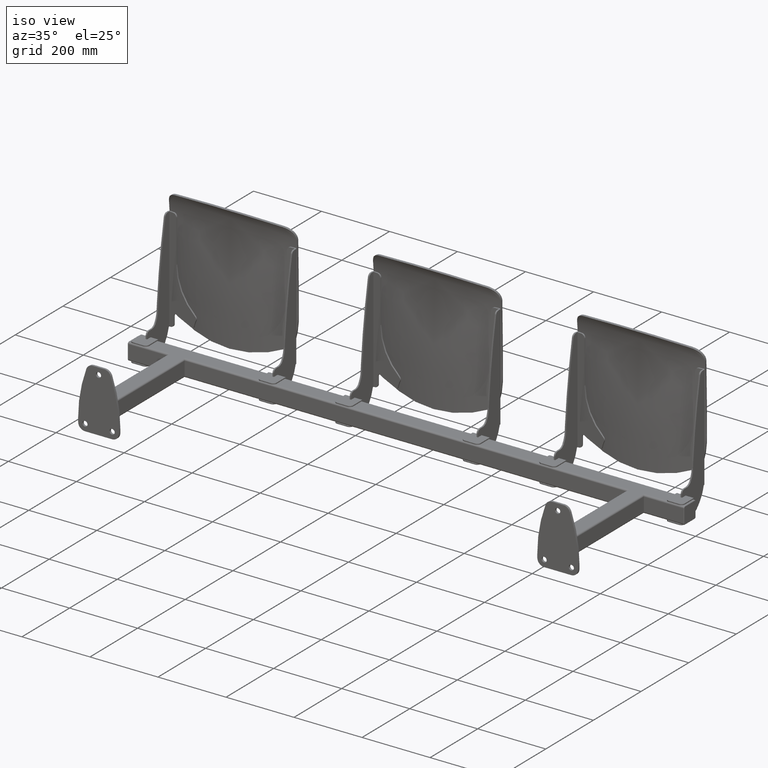
[diagram: clean part render]
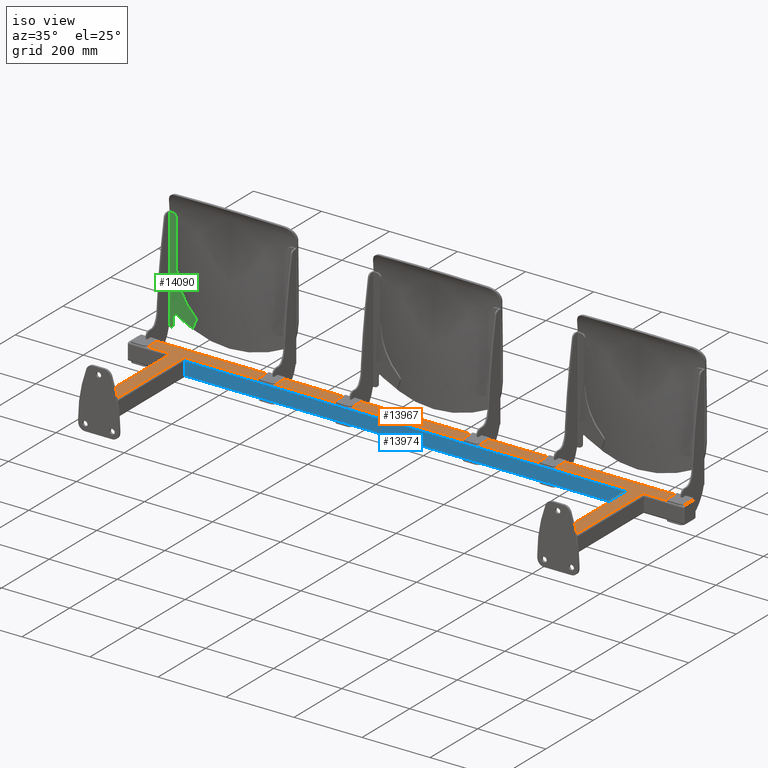
[diagram: same view with three faces highlighted in distinct colors, each labeled with its STEP entity id]
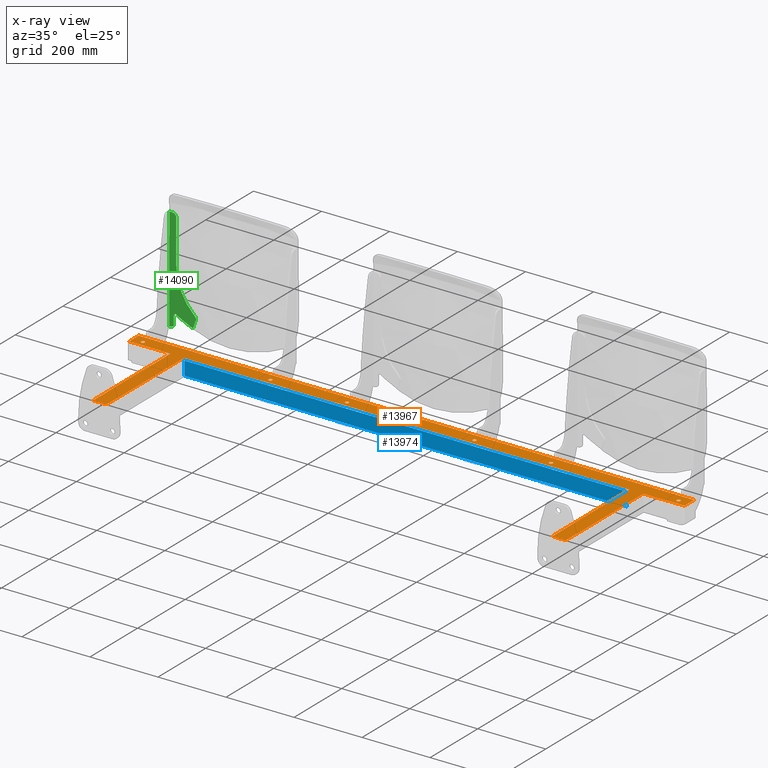
[diagram: x-ray of the same camera — body ghosted, the three highlighted faces saturated]
A machine part, iso view with three faces highlighted in distinct colors.
The next image is the same camera in x-ray (body ghosted, the three faces saturated) — at least one of them is partly hidden behind the body in this view.
Their STEP definitions:

[orange] entity #13967 — the highlighted planar face has unit normal (0, 0, -1).
#2306 = AXIS2_PLACEMENT_3D ( 'NONE', #6467, #6468, #6469 ) ;
#2307 = AXIS2_PLACEMENT_3D ( 'NONE', #6470, #6471, #6472 ) ;
#2308 = AXIS2_PLACEMENT_3D ( 'NONE', #6473, #6474, #6475 ) ;
#2343 = AXIS2_PLACEMENT_3D ( 'NONE', #6610, #6607, #6614 ) ;
#2407 = AXIS2_PLACEMENT_3D ( 'NONE', #9529, #9530, #9531 ) ;
#2408 = AXIS2_PLACEMENT_3D ( 'NONE', #9534, #9535, #9536 ) ;
#2416 = AXIS2_PLACEMENT_3D ( 'NONE', #9655, #9656, #9657 ) ;
#2418 = AXIS2_PLACEMENT_3D ( 'NONE', #9665, #9666, #9667 ) ;
#2420 = AXIS2_PLACEMENT_3D ( 'NONE', #9675, #9676, #9677 ) ;
#2442 = AXIS2_PLACEMENT_3D ( 'NONE', #5076, #5078, #5080 ) ;
#2444 = AXIS2_PLACEMENT_3D ( 'NONE', #5101, #5103, #5105 ) ;
#2446 = AXIS2_PLACEMENT_3D ( 'NONE', #5123, #5124, #5125 ) ;
#3447 = EDGE_CURVE ( 'NONE', #9018, #9026, #9084, .T. ) ;
#3921 = EDGE_LOOP ( 'NONE', ( #10330, #10334 ) ) ;
#3924 = EDGE_LOOP ( 'NONE', ( #10327, #10314 ) ) ;
#3925 = EDGE_LOOP ( 'NONE', ( #10335, #10341, #10320, #10326, #10324, #10325, #10329, #10338, #10315, #10319, #10387, #10361 ) ) ;
#3926 = EDGE_LOOP ( 'NONE', ( #10366, #10371 ) ) ;
#3927 = EDGE_LOOP ( 'NONE', ( #10364, #10365 ) ) ;
#3931 = EDGE_LOOP ( 'NONE', ( #10331, #10332 ) ) ;
#4088 = VERTEX_POINT ( 'NONE', #11244 ) ;
#4092 = VERTEX_POINT ( 'NONE', #11264 ) ;
#5076 = CARTESIAN_POINT ( 'NONE',  ( 187.5000000000000000, 347.0000000000000000, 25.00000000000000000 ) ) ;
#5078 = DIRECTION ( 'NONE',  ( 0.0000000000000000000, 0.0000000000000000000, 1.000000000000000000 ) ) ;
#5080 = DIRECTION ( 'NONE',  ( 1.000000000000000000, 0.0000000000000000000, 0.0000000000000000000 ) ) ;
#5101 = CARTESIAN_POINT ( 'NONE',  ( -187.5000000000000000, 347.0000000000000000, 25.00000000000000000 ) ) ;
#5103 = DIRECTION ( 'NONE',  ( 0.0000000000000000000, 0.0000000000000000000, 1.000000000000000000 ) ) ;
#5105 = DIRECTION ( 'NONE',  ( 1.000000000000000000, 0.0000000000000000000, 0.0000000000000000000 ) ) ;
#5123 = CARTESIAN_POINT ( 'NONE',  ( 412.5000000000000600, 347.0000000000000000, 25.00000000000000000 ) ) ;
#5124 = DIRECTION ( 'NONE',  ( 0.0000000000000000000, 0.0000000000000000000, 1.000000000000000000 ) ) ;
#5125 = DIRECTION ( 'NONE',  ( -1.000000000000000000, 0.0000000000000000000, 0.0000000000000000000 ) ) ;
#6069 = CARTESIAN_POINT ( 'NONE',  ( -187.5000000000000000, 347.0000000000000000, 25.00000000000000000 ) ) ;
#6070 = DIRECTION ( 'NONE',  ( 0.0000000000000000000, 0.0000000000000000000, 1.000000000000000000 ) ) ;
#6071 = DIRECTION ( 'NONE',  ( 1.000000000000000000, 0.0000000000000000000, 0.0000000000000000000 ) ) ;
#6156 = EDGE_LOOP ( 'NONE', ( #10383, #10381 ) ) ;
#6456 = DIRECTION ( 'NONE',  ( 3.469446951953614200E-016, -1.000000000000000000, 0.0000000000000000000 ) ) ;
#6457 = CARTESIAN_POINT ( 'NONE',  ( -655.0000000000000000, 2.272487753529617300E-013, 25.00000000000000000 ) ) ;
#6458 = DIRECTION ( 'NONE',  ( 3.469446951953614200E-016, 1.000000000000000000, 0.0000000000000000000 ) ) ;
#6459 = CARTESIAN_POINT ( 'NONE',  ( 0.0000000000000000000, 331.0000000000000000, 25.00000000000000000 ) ) ;
#6460 = DIRECTION ( 'NONE',  ( 1.000000000000000000, 0.0000000000000000000, 0.0000000000000000000 ) ) ;
#6461 = CARTESIAN_POINT ( 'NONE',  ( 655.0000000000000000, 2.272487753529617300E-013, 25.00000000000000000 ) ) ;
#6462 = DIRECTION ( 'NONE',  ( 3.469446951953614200E-016, -1.000000000000000000, 0.0000000000000000000 ) ) ;
#6463 = CARTESIAN_POINT ( 'NONE',  ( 650.0000000000000000, 6.000000000000000900, 25.00000000000000000 ) ) ;
#6464 = DIRECTION ( 'NONE',  ( 1.000000000000000000, 0.0000000000000000000, 0.0000000000000000000 ) ) ;
#6465 = CARTESIAN_POINT ( 'NONE',  ( 695.0000000000001100, -2.411265631607761900E-013, 25.00000000000000000 ) ) ;
#6466 = DIRECTION ( 'NONE',  ( 3.469446951953614200E-016, 1.000000000000000000, 0.0000000000000000000 ) ) ;
#6467 = CARTESIAN_POINT ( 'NONE',  ( -412.5000000000000600, 347.0000000000000000, 25.00000000000000000 ) ) ;
#6468 = DIRECTION ( 'NONE',  ( 0.0000000000000000000, 0.0000000000000000000, 1.000000000000000000 ) ) ;
#6469 = DIRECTION ( 'NONE',  ( 1.000000000000000000, 0.0000000000000000000, 0.0000000000000000000 ) ) ;
#6470 = CARTESIAN_POINT ( 'NONE',  ( 412.5000000000000600, 347.0000000000000000, 25.00000000000000000 ) ) ;
#6471 = DIRECTION ( 'NONE',  ( 0.0000000000000000000, 0.0000000000000000000, 1.000000000000000000 ) ) ;
#6472 = DIRECTION ( 'NONE',  ( -1.000000000000000000, 0.0000000000000000000, 0.0000000000000000000 ) ) ;
#6473 = CARTESIAN_POINT ( 'NONE',  ( 187.5000000000000000, 347.0000000000000000, 25.00000000000000000 ) ) ;
#6474 = DIRECTION ( 'NONE',  ( 0.0000000000000000000, 0.0000000000000000000, 1.000000000000000000 ) ) ;
#6475 = DIRECTION ( 'NONE',  ( 1.000000000000000000, 0.0000000000000000000, 0.0000000000000000000 ) ) ;
#6484 = CARTESIAN_POINT ( 'NONE',  ( -700.0000000000001100, 6.000000000000000900, 25.00000000000000000 ) ) ;
#6485 = DIRECTION ( 'NONE',  ( 1.000000000000000000, -1.734723475976805600E-017, 0.0000000000000000000 ) ) ;
#6607 = DIRECTION ( 'NONE',  ( 0.0000000000000000000, 0.0000000000000000000, -1.000000000000000000 ) ) ;
#6610 = CARTESIAN_POINT ( 'NONE',  ( 0.0000000000000000000, 0.0000000000000000000, 25.00000000000000000 ) ) ;
#6612 = PLANE ( 'NONE',  #2343 ) ;
#6614 = DIRECTION ( 'NONE',  ( -1.000000000000000000, 0.0000000000000000000, -0.0000000000000000000 ) ) ;
#8319 = CIRCLE ( 'NONE', #2407, 5.249999999999976900 ) ;
#8328 = CIRCLE ( 'NONE', #2408, 5.249999999999976900 ) ;
#8329 = LINE ( 'NONE', #9533, #8334 ) ;
#8330 = LINE ( 'NONE', #9532, #8337 ) ;
#8334 = VECTOR ( 'NONE', #9522, 1000.000000000000000 ) ;
#8336 = LINE ( 'NONE', #9538, #8341 ) ;
#8337 = VECTOR ( 'NONE', #9537, 1000.000000000000000 ) ;
#8339 = LINE ( 'NONE', #9540, #8345 ) ;
#8341 = VECTOR ( 'NONE', #9539, 1000.000000000000000 ) ;
#8343 = LINE ( 'NONE', #9542, #8349 ) ;
#8345 = VECTOR ( 'NONE', #9541, 1000.000000000000000 ) ;
#8349 = VECTOR ( 'NONE', #9543, 1000.000000000000000 ) ;
#8421 = CIRCLE ( 'NONE', #2416, 5.249999999999976900 ) ;
#8428 = CIRCLE ( 'NONE', #2418, 5.250000000000032000 ) ;
#8433 = CIRCLE ( 'NONE', #2420, 5.249999999999976900 ) ;
#8982 = VERTEX_POINT ( 'NONE', #9267 ) ;
#8986 = VERTEX_POINT ( 'NONE', #9269 ) ;
#8987 = VERTEX_POINT ( 'NONE', #9273 ) ;
#8997 = VERTEX_POINT ( 'NONE', #9281 ) ;
#9007 = VERTEX_POINT ( 'NONE', #9291 ) ;
#9009 = VERTEX_POINT ( 'NONE', #9293 ) ;
#9010 = VERTEX_POINT ( 'NONE', #9294 ) ;
#9013 = VERTEX_POINT ( 'NONE', #9297 ) ;
#9014 = VERTEX_POINT ( 'NONE', #9298 ) ;
#9015 = VERTEX_POINT ( 'NONE', #9299 ) ;
#9018 = VERTEX_POINT ( 'NONE', #9302 ) ;
#9022 = VERTEX_POINT ( 'NONE', #9306 ) ;
#9023 = VERTEX_POINT ( 'NONE', #9307 ) ;
#9026 = VERTEX_POINT ( 'NONE', #9310 ) ;
#9035 = VERTEX_POINT ( 'NONE', #9319 ) ;
#9038 = VERTEX_POINT ( 'NONE', #9322 ) ;
#9044 = VERTEX_POINT ( 'NONE', #9328 ) ;
#9045 = VERTEX_POINT ( 'NONE', #9329 ) ;
#9048 = VERTEX_POINT ( 'NONE', #9332 ) ;
#9051 = VERTEX_POINT ( 'NONE', #9335 ) ;
#9059 = VERTEX_POINT ( 'NONE', #9343 ) ;
#9062 = VERTEX_POINT ( 'NONE', #9346 ) ;
#9084 = CIRCLE ( 'NONE', #13749, 5.250000000000004400 ) ;
#9267 = CARTESIAN_POINT ( 'NONE',  ( 695.0000000000002300, 331.0000000000000000, 25.00000000000000000 ) ) ;
#9269 = CARTESIAN_POINT ( 'NONE',  ( -417.7500000000000600, 347.0000000000000000, 25.00000000000000000 ) ) ;
#9273 = CARTESIAN_POINT ( 'NONE',  ( 816.0000000000000000, 371.0000000000000000, 25.00000000000000000 ) ) ;
#9281 = CARTESIAN_POINT ( 'NONE',  ( -695.0000000000002300, 331.0000000000000000, 25.00000000000000000 ) ) ;
#9291 = CARTESIAN_POINT ( 'NONE',  ( -782.2500000000001100, 347.0000000000000000, 25.00000000000000000 ) ) ;
#9293 = CARTESIAN_POINT ( 'NONE',  ( -792.7500000000001100, 347.0000000000000000, 25.00000000000000000 ) ) ;
#9294 = CARTESIAN_POINT ( 'NONE',  ( 417.7500000000000600, 347.0000000000000000, 25.00000000000000000 ) ) ;
#9297 = CARTESIAN_POINT ( 'NONE',  ( -654.9999999999998900, 331.0000000000000000, 25.00000000000000000 ) ) ;
#9298 = CARTESIAN_POINT ( 'NONE',  ( -655.0000000000000000, 6.000000000000000000, 25.00000000000000000 ) ) ;
#9299 = CARTESIAN_POINT ( 'NONE',  ( -816.0000000000000000, 331.0000000000000000, 25.00000000000000000 ) ) ;
#9302 = CARTESIAN_POINT ( 'NONE',  ( -182.2500000000000000, 347.0000000000000000, 25.00000000000000000 ) ) ;
#9306 = CARTESIAN_POINT ( 'NONE',  ( 182.2500000000000000, 347.0000000000000000, 25.00000000000000000 ) ) ;
#9307 = CARTESIAN_POINT ( 'NONE',  ( 654.9999999999998900, 331.0000000000000000, 25.00000000000000000 ) ) ;
#9310 = CARTESIAN_POINT ( 'NONE',  ( -192.7500000000000000, 347.0000000000000000, 25.00000000000000000 ) ) ;
#9319 = CARTESIAN_POINT ( 'NONE',  ( -816.0000000000000000, 371.0000000000000000, 25.00000000000000000 ) ) ;
#9322 = CARTESIAN_POINT ( 'NONE',  ( 782.2500000000001100, 347.0000000000000000, 25.00000000000000000 ) ) ;
#9328 = CARTESIAN_POINT ( 'NONE',  ( 192.7500000000000000, 347.0000000000000000, 25.00000000000000000 ) ) ;
#9329 = CARTESIAN_POINT ( 'NONE',  ( 816.0000000000000000, 331.0000000000000000, 25.00000000000000000 ) ) ;
#9332 = CARTESIAN_POINT ( 'NONE',  ( -407.2500000000000000, 347.0000000000000000, 25.00000000000000000 ) ) ;
#9335 = CARTESIAN_POINT ( 'NONE',  ( -695.0000000000001100, 6.000000000000000900, 25.00000000000000000 ) ) ;
#9343 = CARTESIAN_POINT ( 'NONE',  ( 407.2500000000000000, 347.0000000000000000, 25.00000000000000000 ) ) ;
#9346 = CARTESIAN_POINT ( 'NONE',  ( 792.7500000000001100, 347.0000000000000000, 25.00000000000000000 ) ) ;
#9522 = DIRECTION ( 'NONE',  ( 1.000000000000000000, 0.0000000000000000000, 0.0000000000000000000 ) ) ;
#9529 = CARTESIAN_POINT ( 'NONE',  ( 787.5000000000001100, 347.0000000000000000, 25.00000000000000000 ) ) ;
#9530 = DIRECTION ( 'NONE',  ( 0.0000000000000000000, 0.0000000000000000000, 1.000000000000000000 ) ) ;
#9531 = DIRECTION ( 'NONE',  ( -1.000000000000000000, 0.0000000000000000000, 0.0000000000000000000 ) ) ;
#9532 = CARTESIAN_POINT ( 'NONE',  ( 816.0000000000000000, 0.0000000000000000000, 25.00000000000000000 ) ) ;
#9533 = CARTESIAN_POINT ( 'NONE',  ( 0.0000000000000000000, 331.0000000000000000, 25.00000000000000000 ) ) ;
#9534 = CARTESIAN_POINT ( 'NONE',  ( -787.5000000000001100, 347.0000000000000000, 25.00000000000000000 ) ) ;
#9535 = DIRECTION ( 'NONE',  ( 0.0000000000000000000, 0.0000000000000000000, 1.000000000000000000 ) ) ;
#9536 = DIRECTION ( 'NONE',  ( 1.000000000000000000, 0.0000000000000000000, 0.0000000000000000000 ) ) ;
#9537 = DIRECTION ( 'NONE',  ( 0.0000000000000000000, 1.000000000000000000, 0.0000000000000000000 ) ) ;
#9538 = CARTESIAN_POINT ( 'NONE',  ( 0.0000000000000000000, 371.0000000000000000, 25.00000000000000000 ) ) ;
#9539 = DIRECTION ( 'NONE',  ( -1.000000000000000000, 0.0000000000000000000, 0.0000000000000000000 ) ) ;
#9540 = CARTESIAN_POINT ( 'NONE',  ( -816.0000000000000000, 0.0000000000000000000, 25.00000000000000000 ) ) ;
#9541 = DIRECTION ( 'NONE',  ( 0.0000000000000000000, -1.000000000000000000, 0.0000000000000000000 ) ) ;
#9542 = CARTESIAN_POINT ( 'NONE',  ( 0.0000000000000000000, 331.0000000000000000, 25.00000000000000000 ) ) ;
#9543 = DIRECTION ( 'NONE',  ( 1.000000000000000000, 0.0000000000000000000, 0.0000000000000000000 ) ) ;
#9655 = CARTESIAN_POINT ( 'NONE',  ( 787.5000000000001100, 347.0000000000000000, 25.00000000000000000 ) ) ;
#9656 = DIRECTION ( 'NONE',  ( 0.0000000000000000000, 0.0000000000000000000, 1.000000000000000000 ) ) ;
#9657 = DIRECTION ( 'NONE',  ( -1.000000000000000000, 0.0000000000000000000, 0.0000000000000000000 ) ) ;
#9665 = CARTESIAN_POINT ( 'NONE',  ( -412.5000000000000600, 347.0000000000000000, 25.00000000000000000 ) ) ;
#9666 = DIRECTION ( 'NONE',  ( 0.0000000000000000000, 0.0000000000000000000, 1.000000000000000000 ) ) ;
#9667 = DIRECTION ( 'NONE',  ( 1.000000000000000000, 0.0000000000000000000, 0.0000000000000000000 ) ) ;
#9675 = CARTESIAN_POINT ( 'NONE',  ( -787.5000000000001100, 347.0000000000000000, 25.00000000000000000 ) ) ;
#9676 = DIRECTION ( 'NONE',  ( 0.0000000000000000000, 0.0000000000000000000, 1.000000000000000000 ) ) ;
#9677 = DIRECTION ( 'NONE',  ( 1.000000000000000000, 0.0000000000000000000, 0.0000000000000000000 ) ) ;
#9684 = CARTESIAN_POINT ( 'NONE',  ( -695.0000000000001100, -2.411265631607761900E-013, 25.00000000000000000 ) ) ;
#10314 = ORIENTED_EDGE ( 'NONE', *, *, #11188, .F. ) ;
#10315 = ORIENTED_EDGE ( 'NONE', *, *, #13726, .T. ) ;
#10319 = ORIENTED_EDGE ( 'NONE', *, *, #13727, .T. ) ;
#10320 = ORIENTED_EDGE ( 'NONE', *, *, #11192, .T. ) ;
#10324 = ORIENTED_EDGE ( 'NONE', *, *, #11194, .T. ) ;
#10325 = ORIENTED_EDGE ( 'NONE', *, *, #13724, .T. ) ;
#10326 = ORIENTED_EDGE ( 'NONE', *, *, #11193, .T. ) ;
#10327 = ORIENTED_EDGE ( 'NONE', *, *, #13597, .F. ) ;
#10329 = ORIENTED_EDGE ( 'NONE', *, *, #13739, .T. ) ;
#10330 = ORIENTED_EDGE ( 'NONE', *, *, #13697, .F. ) ;
#10331 = ORIENTED_EDGE ( 'NONE', *, *, #13605, .F. ) ;
#10332 = ORIENTED_EDGE ( 'NONE', *, *, #11189, .F. ) ;
#10334 = ORIENTED_EDGE ( 'NONE', *, *, #3447, .F. ) ;
#10335 = ORIENTED_EDGE ( 'NONE', *, *, #11190, .T. ) ;
#10338 = ORIENTED_EDGE ( 'NONE', *, *, #13725, .T. ) ;
#10341 = ORIENTED_EDGE ( 'NONE', *, *, #11191, .T. ) ;
#10361 = ORIENTED_EDGE ( 'NONE', *, *, #13729, .T. ) ;
#10364 = ORIENTED_EDGE ( 'NONE', *, *, #13701, .F. ) ;
#10365 = ORIENTED_EDGE ( 'NONE', *, *, #13731, .F. ) ;
#10366 = ORIENTED_EDGE ( 'NONE', *, *, #13601, .F. ) ;
#10371 = ORIENTED_EDGE ( 'NONE', *, *, #13730, .F. ) ;
#10381 = ORIENTED_EDGE ( 'NONE', *, *, #13732, .F. ) ;
#10383 = ORIENTED_EDGE ( 'NONE', *, *, #13693, .F. ) ;
#10387 = ORIENTED_EDGE ( 'NONE', *, *, #13728, .T. ) ;
#11188 = EDGE_CURVE ( 'NONE', #9062, #9038, #8319, .T. ) ;
#11189 = EDGE_CURVE ( 'NONE', #9007, #9009, #8328, .T. ) ;
#11190 = EDGE_CURVE ( 'NONE', #8982, #9045, #8329, .T. ) ;
#11191 = EDGE_CURVE ( 'NONE', #9045, #8987, #8330, .T. ) ;
#11192 = EDGE_CURVE ( 'NONE', #8987, #9035, #8336, .T. ) ;
#11193 = EDGE_CURVE ( 'NONE', #9035, #9015, #8339, .T. ) ;
#11194 = EDGE_CURVE ( 'NONE', #9015, #8997, #8343, .T. ) ;
#11244 = CARTESIAN_POINT ( 'NONE',  ( 655.0000000000000000, 6.000000000000000900, 25.00000000000000000 ) ) ;
#11264 = CARTESIAN_POINT ( 'NONE',  ( 695.0000000000001100, 6.000000000000000900, 25.00000000000000000 ) ) ;
#13597 = EDGE_CURVE ( 'NONE', #9038, #9062, #8421, .T. ) ;
#13601 = EDGE_CURVE ( 'NONE', #8986, #9048, #8428, .T. ) ;
#13605 = EDGE_CURVE ( 'NONE', #9009, #9007, #8433, .T. ) ;
#13693 = EDGE_CURVE ( 'NONE', #9022, #9044, #14817, .T. ) ;
#13697 = EDGE_CURVE ( 'NONE', #9026, #9018, #14819, .T. ) ;
#13701 = EDGE_CURVE ( 'NONE', #9059, #9010, #14829, .T. ) ;
#13724 = EDGE_CURVE ( 'NONE', #8997, #9051, #14858, .T. ) ;
#13725 = EDGE_CURVE ( 'NONE', #9014, #9013, #14860, .T. ) ;
#13726 = EDGE_CURVE ( 'NONE', #9013, #9023, #14862, .T. ) ;
#13727 = EDGE_CURVE ( 'NONE', #9023, #4088, #14864, .T. ) ;
#13728 = EDGE_CURVE ( 'NONE', #4088, #4092, #14866, .T. ) ;
#13729 = EDGE_CURVE ( 'NONE', #4092, #8982, #14868, .T. ) ;
#13730 = EDGE_CURVE ( 'NONE', #9048, #8986, #14870, .T. ) ;
#13731 = EDGE_CURVE ( 'NONE', #9010, #9059, #14872, .T. ) ;
#13732 = EDGE_CURVE ( 'NONE', #9044, #9022, #14873, .T. ) ;
#13739 = EDGE_CURVE ( 'NONE', #9051, #9014, #14882, .T. ) ;
#13749 = AXIS2_PLACEMENT_3D ( 'NONE', #6069, #6070, #6071 ) ;
#13967 = ADVANCED_FACE ( 'NONE', ( #14940, #14942, #14939, #14941, #14938, #14943, #14944 ), #6612, .F. ) ;
#14817 = CIRCLE ( 'NONE', #2442, 5.250000000000004400 ) ;
#14819 = CIRCLE ( 'NONE', #2444, 5.250000000000004400 ) ;
#14829 = CIRCLE ( 'NONE', #2446, 5.250000000000032000 ) ;
#14858 = LINE ( 'NONE', #9684, #14861 ) ;
#14860 = LINE ( 'NONE', #6457, #14863 ) ;
#14861 = VECTOR ( 'NONE', #6456, 1000.000000000000000 ) ;
#14862 = LINE ( 'NONE', #6459, #14865 ) ;
#14863 = VECTOR ( 'NONE', #6458, 1000.000000000000000 ) ;
#14864 = LINE ( 'NONE', #6461, #14867 ) ;
#14865 = VECTOR ( 'NONE', #6460, 1000.000000000000000 ) ;
#14866 = LINE ( 'NONE', #6463, #14869 ) ;
#14867 = VECTOR ( 'NONE', #6462, 1000.000000000000000 ) ;
#14868 = LINE ( 'NONE', #6465, #14871 ) ;
#14869 = VECTOR ( 'NONE', #6464, 1000.000000000000000 ) ;
#14870 = CIRCLE ( 'NONE', #2306, 5.250000000000032000 ) ;
#14871 = VECTOR ( 'NONE', #6466, 1000.000000000000000 ) ;
#14872 = CIRCLE ( 'NONE', #2307, 5.250000000000032000 ) ;
#14873 = CIRCLE ( 'NONE', #2308, 5.250000000000004400 ) ;
#14882 = LINE ( 'NONE', #6484, #14884 ) ;
#14884 = VECTOR ( 'NONE', #6485, 1000.000000000000000 ) ;
#14938 = FACE_BOUND ( 'NONE', #3926, .T. ) ;
#14939 = FACE_BOUND ( 'NONE', #3931, .T. ) ;
#14940 = FACE_BOUND ( 'NONE', #3921, .T. ) ;
#14941 = FACE_OUTER_BOUND ( 'NONE', #3925, .T. ) ;
#14942 = FACE_BOUND ( 'NONE', #3924, .T. ) ;
#14943 = FACE_BOUND ( 'NONE', #3927, .T. ) ;
#14944 = FACE_BOUND ( 'NONE', #6156, .T. ) ;

[blue] entity #13974 — the highlighted planar face has unit normal (0, 1, 0).
#3689 = EDGE_CURVE ( 'NONE', #12339, #12334, #5865, .T. ) ;
#3691 = EDGE_CURVE ( 'NONE', #12296, #12334, #5861, .T. ) ;
#3693 = EDGE_CURVE ( 'NONE', #12296, #7736, #5866, .T. ) ;
#4941 = CARTESIAN_POINT ( 'NONE',  ( -649.9999999999998900, 326.0000000000000000, 25.00000000000000000 ) ) ;
#4944 = DIRECTION ( 'NONE',  ( -0.0000000000000000000, -0.0000000000000000000, -1.000000000000000000 ) ) ;
#5734 = CARTESIAN_POINT ( 'NONE',  ( -649.9999999999998900, 326.0000000000000000, 20.00000000000000000 ) ) ;
#5861 = LINE ( 'NONE', #11238, #5869 ) ;
#5865 = LINE ( 'NONE', #11232, #5867 ) ;
#5866 = LINE ( 'NONE', #11237, #5871 ) ;
#5867 = VECTOR ( 'NONE', #11233, 1000.000000000000000 ) ;
#5869 = VECTOR ( 'NONE', #11243, 1000.000000000000000 ) ;
#5871 = VECTOR ( 'NONE', #11245, 1000.000000000000000 ) ;
#6109 = ORIENTED_EDGE ( 'NONE', *, *, #3693, .T. ) ;
#6116 = ORIENTED_EDGE ( 'NONE', *, *, #3691, .F. ) ;
#6123 = ORIENTED_EDGE ( 'NONE', *, *, #3689, .T. ) ;
#6124 = ORIENTED_EDGE ( 'NONE', *, *, #13671, .T. ) ;
#6158 = EDGE_LOOP ( 'NONE', ( #6124, #6123, #6116, #6109 ) ) ;
#6631 = PLANE ( 'NONE',  #9746 ) ;
#6632 = CARTESIAN_POINT ( 'NONE',  ( -649.9999999999998900, 326.0000000000000000, 25.00000000000000000 ) ) ;
#6637 = DIRECTION ( 'NONE',  ( 0.0000000000000000000, 1.000000000000000000, 0.0000000000000000000 ) ) ;
#6638 = DIRECTION ( 'NONE',  ( 0.0000000000000000000, -0.0000000000000000000, 1.000000000000000000 ) ) ;
#7736 = VERTEX_POINT ( 'NONE', #5734 ) ;
#8498 = LINE ( 'NONE', #4941, #8501 ) ;
#8501 = VECTOR ( 'NONE', #4944, 1000.000000000000000 ) ;
#9588 = CARTESIAN_POINT ( 'NONE',  ( 649.9999999999998900, 326.0000000000000000, 20.00000000000000000 ) ) ;
#9595 = CARTESIAN_POINT ( 'NONE',  ( 649.9999999999998900, 326.0000000000000000, -19.99999999999999600 ) ) ;
#9597 = CARTESIAN_POINT ( 'NONE',  ( -649.9999999999998900, 326.0000000000000000, -19.99999999999999600 ) ) ;
#9746 = AXIS2_PLACEMENT_3D ( 'NONE', #6632, #6637, #6638 ) ;
#11232 = CARTESIAN_POINT ( 'NONE',  ( 649.9999999999998900, 326.0000000000000000, -19.99999999999999600 ) ) ;
#11233 = DIRECTION ( 'NONE',  ( 1.000000000000000000, 0.0000000000000000000, 0.0000000000000000000 ) ) ;
#11237 = CARTESIAN_POINT ( 'NONE',  ( -649.9999999999998900, 326.0000000000000000, 20.00000000000000000 ) ) ;
#11238 = CARTESIAN_POINT ( 'NONE',  ( 649.9999999999998900, 326.0000000000000000, 25.00000000000000000 ) ) ;
#11243 = DIRECTION ( 'NONE',  ( -0.0000000000000000000, -0.0000000000000000000, -1.000000000000000000 ) ) ;
#11245 = DIRECTION ( 'NONE',  ( -1.000000000000000000, -0.0000000000000000000, -0.0000000000000000000 ) ) ;
#12296 = VERTEX_POINT ( 'NONE', #9588 ) ;
#12334 = VERTEX_POINT ( 'NONE', #9595 ) ;
#12339 = VERTEX_POINT ( 'NONE', #9597 ) ;
#13671 = EDGE_CURVE ( 'NONE', #7736, #12339, #8498, .T. ) ;
#13974 = ADVANCED_FACE ( 'NONE', ( #14957 ), #6631, .F. ) ;
#14957 = FACE_OUTER_BOUND ( 'NONE', #6158, .T. ) ;

[green] entity #14090 — the highlighted planar face has unit normal (-0.0958, -0.9954, 0).
#3409 = PLANE ( 'NONE',  #7153 ) ;
#3410 = CARTESIAN_POINT ( 'NONE',  ( -188.5000000000000000, 17.99999999999996100, 24.00000000000002100 ) ) ;
#3415 = DIRECTION ( 'NONE',  ( -0.09584575252022049800, -0.9953961983671791900, 0.0000000000000000000 ) ) ;
#3416 = DIRECTION ( 'NONE',  ( 0.9953961983671790700, -0.09584575252022048400, 0.0000000000000000000 ) ) ;
#3967 = CARTESIAN_POINT ( 'NONE',  ( -184.5000000000000000, 17.61484380720990100, 42.09000911109884400 ) ) ;
#3968 = DIRECTION ( 'NONE',  ( 0.0000000000000000000, 0.0000000000000000000, 1.000000000000000000 ) ) ;
#3975 = CARTESIAN_POINT ( 'NONE',  ( -162.6196988424526400, 15.50801043447419600, 24.00000000000009600 ) ) ;
#3976 = DIRECTION ( 'NONE',  ( 0.9953961983671790700, -0.09584575252022037300, 0.0000000000000000000 ) ) ;
#3977 = DIRECTION ( 'NONE',  ( 2.750060156608368600E-015, -2.648006749657840600E-016, -1.000000000000000000 ) ) ;
#3978 = CARTESIAN_POINT ( 'NONE',  ( -182.9675193682065500, 17.46728270579328400, 24.39113088401540400 ) ) ;
#3979 = DIRECTION ( 'NONE',  ( 2.176688216276588300E-013, -2.095912365680630600E-014, -1.000000000000000000 ) ) ;
#3980 = CARTESIAN_POINT ( 'NONE',  ( -184.4999999999999400, 17.61484380720984400, 330.0000000000000000 ) ) ;
#3981 = CARTESIAN_POINT ( 'NONE',  ( -172.5736608261252300, 16.46646795967643600, 320.0000000000000000 ) ) ;
#3982 = DIRECTION ( 'NONE',  ( -0.09584575252022049800, -0.9953961983671791900, -0.0000000000000000000 ) ) ;
#3983 = DIRECTION ( 'NONE',  ( 0.9953961983671790700, -0.09584575252022054000, 0.0000000000000000000 ) ) ;
#3984 = CARTESIAN_POINT ( 'NONE',  ( -181.4249707208374500, 17.31875216473971300, 24.49681722962390400 ) ) ;
#3985 = CARTESIAN_POINT ( 'NONE',  ( -179.8724822042540600, 17.16926452314032800, 24.60114541509068100 ) ) ;
#3986 = CARTESIAN_POINT ( 'NONE',  ( -184.5000000000000000, 17.61484380720990100, 24.28409515809885400 ) ) ;
#3987 = CARTESIAN_POINT ( 'NONE',  ( -170.5828684293788300, 16.27477645463487500, 24.00000000000395800 ) ) ;
#3989 = CARTESIAN_POINT ( 'NONE',  ( -180.5368304130530200, 17.23323397983728000, 34.57884802471357200 ) ) ;
#3990 = DIRECTION ( 'NONE',  ( -0.09584575252022049800, -0.9953961983671791900, -0.0000000000000000000 ) ) ;
#3991 = DIRECTION ( 'NONE',  ( 0.9953961983671793000, -0.09584575252022038700, 0.0000000000000000000 ) ) ;
#3992 = CARTESIAN_POINT ( 'NONE',  ( -120.2635138761707900, 11.42957369879214200, 44.07372596261147600 ) ) ;
#3993 = CARTESIAN_POINT ( 'NONE',  ( -156.8707370378486100, 14.95444837418485800, 58.88155333963863600 ) ) ;
#3994 = CARTESIAN_POINT ( 'NONE',  ( -158.3153326412890500, 15.09354710987048700, 59.62261421516016900 ) ) ;
#3995 = CARTESIAN_POINT ( 'NONE',  ( -164.6104912391828300, 15.69970193951419900, 56.59145301664560200 ) ) ;
#3996 = DIRECTION ( 'NONE',  ( 0.09584575252022049800, 0.9953961983671791900, 0.0000000000000000000 ) ) ;
#3997 = DIRECTION ( 'NONE',  ( 0.9953961983671791900, -0.09584575252022037300, 0.0000000000000000000 ) ) ;
#3998 = CARTESIAN_POINT ( 'NONE',  ( -156.1380335318006900, 14.88389705097653600, 58.54220238807209900 ) ) ;
#3999 = CARTESIAN_POINT ( 'NONE',  ( -159.9432653440214800, 15.25029920034622500, 60.63089457596555600 ) ) ;
#4000 = CARTESIAN_POINT ( 'NONE',  ( -160.8630157402462000, 15.33886109057801200, 61.27424498524445800 ) ) ;
#4001 = CARTESIAN_POINT ( 'NONE',  ( -161.1214335537769400, 15.36374389588018900, 61.46111508508809600 ) ) ;
#4002 = CARTESIAN_POINT ( 'NONE',  ( -115.0096950149533100, 10.92368848124325400, 42.35488176124789600 ) ) ;
#4003 = CARTESIAN_POINT ( 'NONE',  ( -129.8152838245827400, 12.34930453572655700, 47.43398999284612200 ) ) ;
#4004 = CARTESIAN_POINT ( 'NONE',  ( -143.5008606733279400, 13.66707570452646600, 52.87726956516083000 ) ) ;
#4005 = CARTESIAN_POINT ( 'NONE',  ( -151.9526490212497000, 14.48089036011485000, 56.60374593299583500 ) ) ;
#4006 = CARTESIAN_POINT ( 'NONE',  ( -156.1380335318006900, 14.88389705097653600, 58.54220238807209900 ) ) ;
#4008 = CARTESIAN_POINT ( 'NONE',  ( -113.1603538091479600, 10.74561717674377100, 48.05998716912812800 ) ) ;
#4009 = DIRECTION ( 'NONE',  ( -0.09584575252022049800, -0.9953961983671791900, -0.0000000000000000000 ) ) ;
#4010 = DIRECTION ( 'NONE',  ( 0.9953961983671791900, -0.09584575252022037300, 0.0000000000000000000 ) ) ;
#4011 = CARTESIAN_POINT ( 'NONE',  ( -33.57478584118886300, 3.082398586848778000, 29.84122683389196200 ) ) ;
#4012 = DIRECTION ( 'NONE',  ( -0.09584575252022049800, -0.9953961983671791900, -0.0000000000000000000 ) ) ;
#4013 = DIRECTION ( 'NONE',  ( 0.9953961983671791900, -0.09584575252022049800, 0.0000000000000000000 ) ) ;
#4016 = CARTESIAN_POINT ( 'NONE',  ( -109.0102407228748000, 10.34600673775437600, 68.00000000000000000 ) ) ;
#4017 = DIRECTION ( 'NONE',  ( 0.09584575252022049800, 0.9953961983671791900, 0.0000000000000000000 ) ) ;
#4018 = DIRECTION ( 'NONE',  ( 0.9953961983671790700, -0.09584575252022055300, -3.137667280584005200E-015 ) ) ;
#4182 = CARTESIAN_POINT ( 'NONE',  ( -13.31026908737649200, 1.131147556441169900, 194.4461557886543800 ) ) ;
#4183 = DIRECTION ( 'NONE',  ( -0.09584575252022049800, -0.9953961983671791900, -0.0000000000000000000 ) ) ;
#4184 = DIRECTION ( 'NONE',  ( 0.9953961983671791900, -0.09584575252022049800, 0.0000000000000000000 ) ) ;
#4400 = EDGE_CURVE ( 'NONE', #5578, #5599, #5881, .T. ) ;
#4404 = EDGE_CURVE ( 'NONE', #5604, #5593, #5882, .T. ) ;
#4405 = EDGE_CURVE ( 'NONE', #5604, #5580, #5884, .T. ) ;
#4406 = EDGE_CURVE ( 'NONE', #5599, #5580, #5885, .T. ) ;
#4407 = EDGE_CURVE ( 'NONE', #5598, #5578, #13873, .T. ) ;
#4408 = EDGE_CURVE ( 'NONE', #5598, #5619, #5889, .T. ) ;
#4409 = EDGE_CURVE ( 'NONE', #5547, #5619, #5893, .T. ) ;
#4410 = EDGE_CURVE ( 'NONE', #5547, #5615, #5890, .T. ) ;
#4411 = EDGE_CURVE ( 'NONE', #5555, #5615, #13872, .T. ) ;
#4412 = EDGE_CURVE ( 'NONE', #5565, #5555, #13895, .T. ) ;
#4413 = EDGE_CURVE ( 'NONE', #5565, #5566, #5897, .T. ) ;
#4414 = EDGE_CURVE ( 'NONE', #5605, #5566, #5892, .T. ) ;
#4415 = EDGE_CURVE ( 'NONE', #5541, #5605, #5895, .T. ) ;
#4966 = CARTESIAN_POINT ( 'NONE',  ( -103.6808314258597100, 9.832842989089707300, 75.04162505709574300 ) ) ;
#4979 = CARTESIAN_POINT ( 'NONE',  ( -170.5828684293859400, 16.27477645463554300, 56.59145301664429400 ) ) ;
#4993 = CARTESIAN_POINT ( 'NONE',  ( -156.1380335318006900, 14.88389705097653600, 58.54220238807209900 ) ) ;
#5010 = CARTESIAN_POINT ( 'NONE',  ( -115.0096950149533100, 10.92368848124325400, 42.35488176124789600 ) ) ;
#5012 = CARTESIAN_POINT ( 'NONE',  ( -107.3372407343402300, 10.18491516122393900, 46.72695777418037000 ) ) ;
#5031 = CARTESIAN_POINT ( 'NONE',  ( -184.5000000000000000, 17.61484380720990100, 24.28409515809885400 ) ) ;
#5034 = CARTESIAN_POINT ( 'NONE',  ( -172.5736608261252300, 16.46646795967643600, 330.0000000000000000 ) ) ;
#5056 = CARTESIAN_POINT ( 'NONE',  ( -162.6196988424533700, 15.50801043447425100, 194.4461557886543800 ) ) ;
#5063 = CARTESIAN_POINT ( 'NONE',  ( -179.8724822042540600, 17.16926452314032800, 24.60114541509068100 ) ) ;
#5065 = CARTESIAN_POINT ( 'NONE',  ( -184.4999999999999400, 17.61484380720984400, 330.0000000000000000 ) ) ;
#5073 = CARTESIAN_POINT ( 'NONE',  ( -162.6196988424534600, 15.50801043447425100, 320.0000000000000000 ) ) ;
#5075 = CARTESIAN_POINT ( 'NONE',  ( -101.1457261246025200, 9.588740112551120000, 64.02176152993708100 ) ) ;
#5090 = CARTESIAN_POINT ( 'NONE',  ( -161.1214335537769400, 15.36374389588018900, 61.46111508508809600 ) ) ;
#5097 = CARTESIAN_POINT ( 'NONE',  ( -170.5828684293811400, 16.27477645463509900, 34.57884802471576100 ) ) ;
#5294 = CIRCLE ( 'NONE', #15224, 150.0000000000000300 ) ;
#5534 = EDGE_LOOP ( 'NONE', ( #7104, #7105, #7106, #7107, #7108, #7109, #7110, #7111, #7112, #7113, #7114, #7115, #7116, #7117 ) ) ;
#5541 = VERTEX_POINT ( 'NONE', #4966 ) ;
#5547 = VERTEX_POINT ( 'NONE', #4979 ) ;
#5555 = VERTEX_POINT ( 'NONE', #4993 ) ;
#5565 = VERTEX_POINT ( 'NONE', #5010 ) ;
#5566 = VERTEX_POINT ( 'NONE', #5012 ) ;
#5578 = VERTEX_POINT ( 'NONE', #5031 ) ;
#5580 = VERTEX_POINT ( 'NONE', #5034 ) ;
#5593 = VERTEX_POINT ( 'NONE', #5056 ) ;
#5598 = VERTEX_POINT ( 'NONE', #5063 ) ;
#5599 = VERTEX_POINT ( 'NONE', #5065 ) ;
#5604 = VERTEX_POINT ( 'NONE', #5073 ) ;
#5605 = VERTEX_POINT ( 'NONE', #5075 ) ;
#5615 = VERTEX_POINT ( 'NONE', #5090 ) ;
#5619 = VERTEX_POINT ( 'NONE', #5097 ) ;
#5878 = VECTOR ( 'NONE', #3968, 1000.000000000000000 ) ;
#5881 = LINE ( 'NONE', #3967, #5878 ) ;
#5882 = LINE ( 'NONE', #3975, #5888 ) ;
#5884 = CIRCLE ( 'NONE', #13783, 10.00000000000000400 ) ;
#5885 = LINE ( 'NONE', #3980, #5891 ) ;
#5888 = VECTOR ( 'NONE', #3977, 1000.000000000000000 ) ;
#5889 = CIRCLE ( 'NONE', #13784, 10.00000000000000200 ) ;
#5890 = CIRCLE ( 'NONE', #13785, 6.000000000000000900 ) ;
#5891 = VECTOR ( 'NONE', #3976, 1000.000000000000100 ) ;
#5892 = CIRCLE ( 'NONE', #13787, 76.00311442922111400 ) ;
#5893 = LINE ( 'NONE', #3987, #5894 ) ;
#5894 = VECTOR ( 'NONE', #3979, 1000.000000000000000 ) ;
#5895 = CIRCLE ( 'NONE', #13789, 8.845926968541688100 ) ;
#5897 = CIRCLE ( 'NONE', #13786, 6.000000000000000900 ) ;
#6947 = EDGE_CURVE ( 'NONE', #5593, #5541, #5294, .T. ) ;
#7104 = ORIENTED_EDGE ( 'NONE', *, *, #4404, .F. ) ;
#7105 = ORIENTED_EDGE ( 'NONE', *, *, #4405, .T. ) ;
#7106 = ORIENTED_EDGE ( 'NONE', *, *, #4406, .F. ) ;
#7107 = ORIENTED_EDGE ( 'NONE', *, *, #4400, .F. ) ;
#7108 = ORIENTED_EDGE ( 'NONE', *, *, #4407, .F. ) ;
#7109 = ORIENTED_EDGE ( 'NONE', *, *, #4408, .T. ) ;
#7110 = ORIENTED_EDGE ( 'NONE', *, *, #4409, .F. ) ;
#7111 = ORIENTED_EDGE ( 'NONE', *, *, #4410, .T. ) ;
#7112 = ORIENTED_EDGE ( 'NONE', *, *, #4411, .F. ) ;
#7113 = ORIENTED_EDGE ( 'NONE', *, *, #4412, .F. ) ;
#7114 = ORIENTED_EDGE ( 'NONE', *, *, #4413, .T. ) ;
#7115 = ORIENTED_EDGE ( 'NONE', *, *, #4414, .F. ) ;
#7116 = ORIENTED_EDGE ( 'NONE', *, *, #4415, .F. ) ;
#7117 = ORIENTED_EDGE ( 'NONE', *, *, #6947, .F. ) ;
#7153 = AXIS2_PLACEMENT_3D ( 'NONE', #3410, #3415, #3416 ) ;
#8685 = FACE_OUTER_BOUND ( 'NONE', #5534, .T. ) ;
#13783 = AXIS2_PLACEMENT_3D ( 'NONE', #3981, #3982, #3983 ) ;
#13784 = AXIS2_PLACEMENT_3D ( 'NONE', #3989, #3990, #3991 ) ;
#13785 = AXIS2_PLACEMENT_3D ( 'NONE', #3995, #3996, #3997 ) ;
#13786 = AXIS2_PLACEMENT_3D ( 'NONE', #4008, #4009, #4010 ) ;
#13787 = AXIS2_PLACEMENT_3D ( 'NONE', #4011, #4012, #4013 ) ;
#13789 = AXIS2_PLACEMENT_3D ( 'NONE', #4016, #4017, #4018 ) ;
#13872 = B_SPLINE_CURVE_WITH_KNOTS ( 'NONE', 3,
 ( #3998, #3993, #3994, #3999, #4000, #4001 ),
 .UNSPECIFIED., .F., .F.,
 ( 4, 1, 1, 4 ),
 ( 0.0000000000000000000, 0.09120023808047161800, 0.1824004761609432600, 0.2185380446200244900 ),
 .UNSPECIFIED. ) ;
#13873 =( BOUNDED_CURVE ( )  B_SPLINE_CURVE ( 3, ( #3985, #3984, #3978, #3986 ),
 .UNSPECIFIED., .F., .F. ) 
 B_SPLINE_CURVE_WITH_KNOTS ( ( 4, 4 ),
 ( 5.321707578490328500, 5.339936677496162100 ),
 .UNSPECIFIED. ) 
 CURVE ( )  GEOMETRIC_REPRESENTATION_ITEM ( )  RATIONAL_B_SPLINE_CURVE ( ( 1.000000000000000000, 0.9999723085208263000, 0.9999723085208263000, 1.000000000000000000 ) ) 
 REPRESENTATION_ITEM ( '' )  );
#13895 = B_SPLINE_CURVE_WITH_KNOTS ( 'NONE', 3,
 ( #4002, #3992, #4003, #4004, #4005, #4006 ),
 .UNSPECIFIED., .F., .F.,
 ( 4, 1, 1, 4 ),
 ( 0.03439965888567484600, 0.08637565307253473900, 0.1295634796088021000, 0.1727513061450694800 ),
 .UNSPECIFIED. ) ;
#14090 = ADVANCED_FACE ( 'NONE', ( #8685 ), #3409, .T. ) ;
#15224 = AXIS2_PLACEMENT_3D ( 'NONE', #4182, #4183, #4184 ) ;